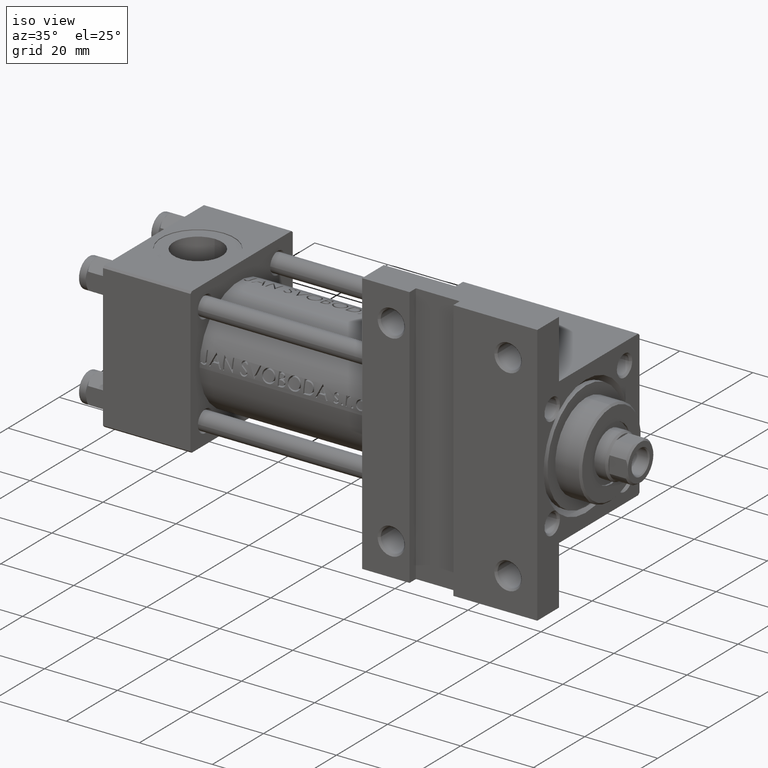
[diagram: clean part render]
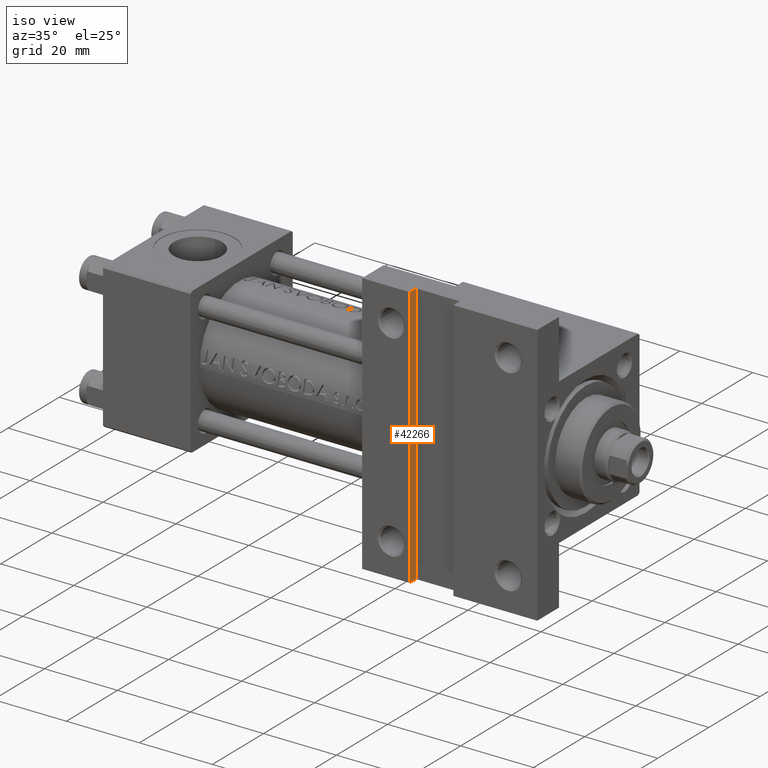
[diagram: same view with one face highlighted and labeled with its STEP entity id]
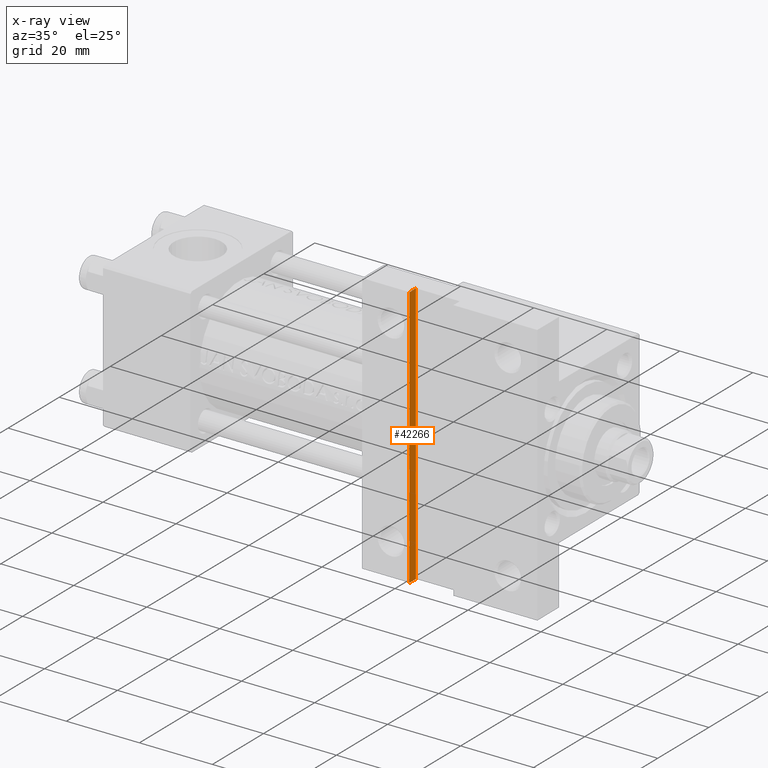
[diagram: x-ray of the same camera — body ghosted, the highlighted face saturated]
A machine part, iso view. The second image highlights one B-rep face of the part: STEP entity #42266.
The next image is the same camera in x-ray: the body ghosted, the highlighted face saturated — about 0% of this face is hidden behind the body in this view.
In plain terms, the highlighted planar face has unit normal (-1, 0, 0).
Its self-contained STEP definition (entity closure, byte-faithful):
#1209 = DIRECTION ( 'NONE',  ( 0.000000000000000000, 1.000000000000000000, 0.000000000000000000 ) ) ;
#2036 = EDGE_LOOP ( 'NONE', ( #36506, #15391, #11630, #42216 ) ) ;
#2513 = VERTEX_POINT ( 'NONE', #35330 ) ;
#4139 = CARTESIAN_POINT ( 'NONE',  ( 83.99999999999997158, 35.99999999999995026, -20.00000000000000000 ) ) ;
#4151 = CARTESIAN_POINT ( 'NONE',  ( 83.99999999999997158, 35.99999999999995026, -17.50000000000000000 ) ) ;
#6661 = DIRECTION ( 'NONE',  ( -0.000000000000000000, -0.000000000000000000, -1.000000000000000000 ) ) ;
#9456 = DIRECTION ( 'NONE',  ( -0.000000000000000000, -0.000000000000000000, -1.000000000000000000 ) ) ;
#10204 = AXIS2_PLACEMENT_3D ( 'NONE', #28443, #20467, #28191 ) ;
#11032 = CARTESIAN_POINT ( 'NONE',  ( 83.99999999999997158, -35.99999999999999289, -17.50000000000000000 ) ) ;
#11630 = ORIENTED_EDGE ( 'NONE', *, *, #20979, .F. ) ;
#12510 = VECTOR ( 'NONE', #1209, 1000.000000000000000 ) ;
#14142 = CARTESIAN_POINT ( 'NONE',  ( 83.99999999999997158, -35.99999999999999289, -17.50000000000000000 ) ) ;
#15391 = ORIENTED_EDGE ( 'NONE', *, *, #30293, .F. ) ;
#16170 = CARTESIAN_POINT ( 'NONE',  ( 83.99999999999997158, -35.99999999999999289, -20.00000000000000000 ) ) ;
#16690 = LINE ( 'NONE', #31637, #29852 ) ;
#17588 = LINE ( 'NONE', #32309, #21252 ) ;
#17826 = EDGE_CURVE ( 'NONE', #38905, #2513, #35843, .T. ) ;
#20180 = VERTEX_POINT ( 'NONE', #4151 ) ;
#20467 = DIRECTION ( 'NONE',  ( -1.000000000000000000, 0.000000000000000000, 0.000000000000000000 ) ) ;
#20956 = FACE_OUTER_BOUND ( 'NONE', #2036, .T. ) ;
#20979 = EDGE_CURVE ( 'NONE', #38905, #20180, #17588, .T. ) ;
#21252 = VECTOR ( 'NONE', #21339, 1000.000000000000000 ) ;
#21339 = DIRECTION ( 'NONE',  ( 0.000000000000000000, 1.000000000000000000, 0.000000000000000000 ) ) ;
#22877 = VECTOR ( 'NONE', #6661, 1000.000000000000000 ) ;
#24140 = LINE ( 'NONE', #16170, #12510 ) ;
#28191 = DIRECTION ( 'NONE',  ( 0.000000000000000000, 0.000000000000000000, 1.000000000000000000 ) ) ;
#28443 = CARTESIAN_POINT ( 'NONE',  ( 83.99999999999997158, -35.99999999999999289, -17.50000000000000000 ) ) ;
#29852 = VECTOR ( 'NONE', #9456, 1000.000000000000000 ) ;
#30293 = EDGE_CURVE ( 'NONE', #20180, #45750, #16690, .T. ) ;
#31637 = CARTESIAN_POINT ( 'NONE',  ( 83.99999999999997158, 35.99999999999995026, -17.50000000000000000 ) ) ;
#32309 = CARTESIAN_POINT ( 'NONE',  ( 83.99999999999997158, -35.99999999999999289, -17.50000000000000000 ) ) ;
#35330 = CARTESIAN_POINT ( 'NONE',  ( 83.99999999999997158, -35.99999999999999289, -20.00000000000000000 ) ) ;
#35843 = LINE ( 'NONE', #14142, #22877 ) ;
#36506 = ORIENTED_EDGE ( 'NONE', *, *, #40310, .T. ) ;
#38905 = VERTEX_POINT ( 'NONE', #11032 ) ;
#40310 = EDGE_CURVE ( 'NONE', #2513, #45750, #24140, .T. ) ;
#42216 = ORIENTED_EDGE ( 'NONE', *, *, #17826, .T. ) ;
#42266 = ADVANCED_FACE ( 'NONE', ( #20956 ), #47666, .F. ) ;
#45750 = VERTEX_POINT ( 'NONE', #4139 ) ;
#47666 = PLANE ( 'NONE',  #10204 ) ;